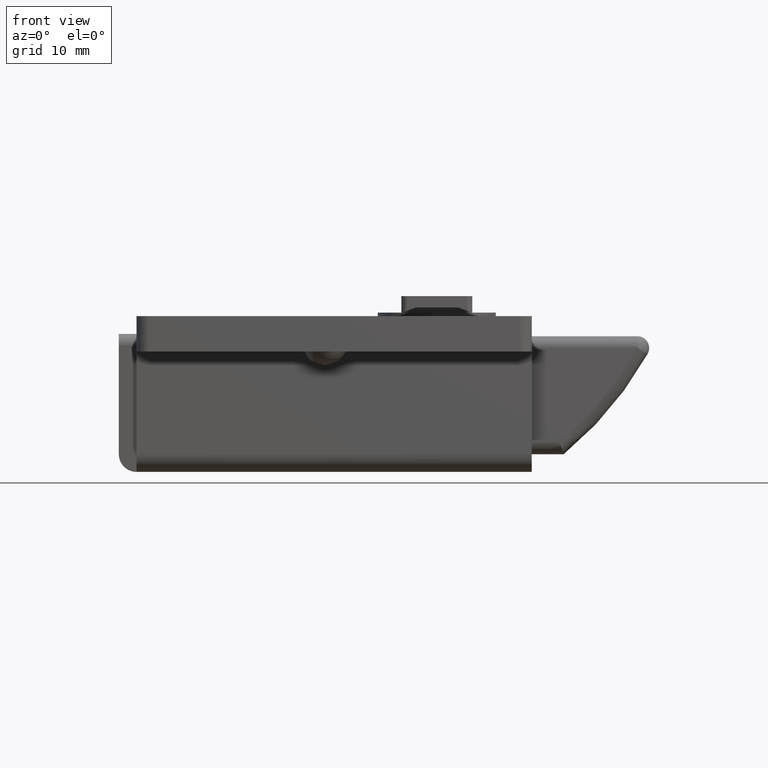
[diagram: clean part render]
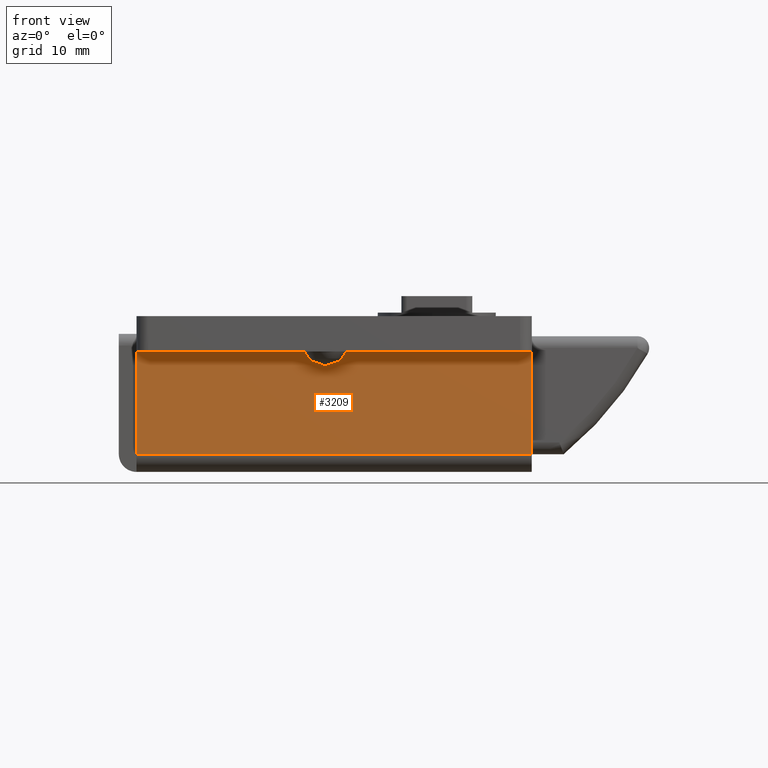
[diagram: same view with one face highlighted and labeled with its STEP entity id]
A machine part, front view. The second image highlights one B-rep face of the part: STEP entity #3209.
In plain terms, the highlighted face is a freeform B-spline surface patch.
Its self-contained STEP definition (entity closure, byte-faithful):
#3174=CARTESIAN_POINT('',(-35.173324935157652,-8.600000000000000,10.634564983137720));
#3175=CARTESIAN_POINT('',(-35.173324935157652,-8.600000000000000,1.065434783510104));
#3176=CARTESIAN_POINT('',(1.673325833614663,-8.600000000000000,10.634564983137720));
#3177=CARTESIAN_POINT('',(1.673325833614663,-8.600000000000000,1.065434783510104));
#3178=B_SPLINE_SURFACE_WITH_KNOTS('',1,1,((#3174,#3176),(#3175,#3177)),.UNSPECIFIED.,.F.,.F.,.U.,(2,2),(2,2),(0.0,9.569130199627612),(0.0,36.846650768772307),.UNSPECIFIED.);
#3179=CARTESIAN_POINT('',(-33.500000000083013,-8.600000000000000,1.500000000000000));
#3180=VERTEX_POINT('',#3179);
#3181=CARTESIAN_POINT('',(-33.500000000083013,-8.600000000000000,10.199999999999999));
#3182=VERTEX_POINT('',#3181);
#3183=CARTESIAN_POINT('',(-33.500000000083013,-8.600000000000000,1.500000000000000));
#3184=CARTESIAN_POINT('',(-33.500000000083013,-8.600000000000000,10.199999999999999));
#3185=QUASI_UNIFORM_CURVE('',1,(#3183,#3184),.UNSPECIFIED.,.F.,.U.);
#3186=EDGE_CURVE('',#3180,#3182,#3185,.T.);
#3187=ORIENTED_EDGE('',*,*,#3186,.F.);
#3188=CARTESIAN_POINT('',(0.0,-8.600000000000000,1.500000000000000));
#3189=VERTEX_POINT('',#3188);
#3190=CARTESIAN_POINT('',(-33.500000000083013,-8.600000000000000,1.500000000000000));
#3191=CARTESIAN_POINT('',(0.0,-8.600000000000000,1.500000000000000));
#3192=QUASI_UNIFORM_CURVE('',1,(#3190,#3191),.UNSPECIFIED.,.F.,.U.);
#3193=EDGE_CURVE('',#3180,#3189,#3192,.T.);
#3194=ORIENTED_EDGE('',*,*,#3193,.T.);
#3195=CARTESIAN_POINT('',(0.0,-8.600000000000000,10.199999999999999));
#3196=VERTEX_POINT('',#3195);
#3197=CARTESIAN_POINT('',(0.0,-8.600000000000000,1.500000000000000));
#3198=CARTESIAN_POINT('',(0.0,-8.600000000000000,10.199999999999999));
#3199=QUASI_UNIFORM_CURVE('',1,(#3197,#3198),.UNSPECIFIED.,.F.,.U.);
#3200=EDGE_CURVE('',#3189,#3196,#3199,.T.);
#3201=ORIENTED_EDGE('',*,*,#3200,.T.);
#3202=CARTESIAN_POINT('',(0.0,-8.600000000000000,10.199999999999999));
#3203=CARTESIAN_POINT('',(-33.500000000083013,-8.600000000000000,10.199999999999999));
#3204=QUASI_UNIFORM_CURVE('',1,(#3202,#3203),.UNSPECIFIED.,.F.,.U.);
#3205=EDGE_CURVE('',#3196,#3182,#3204,.T.);
#3206=ORIENTED_EDGE('',*,*,#3205,.T.);
#3207=EDGE_LOOP('',(#3187,#3194,#3201,#3206));
#3208=FACE_OUTER_BOUND('',#3207,.T.);
#3209=ADVANCED_FACE('',(#3208),#3178,.T.);